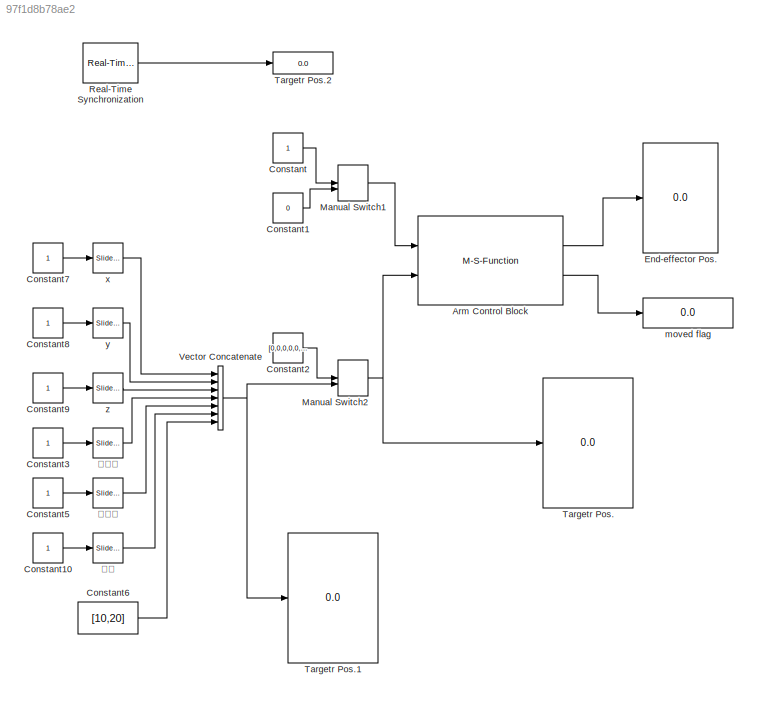
MODEL slx_97f1d8b78ae2
KIND model
CONFIG AbsTol = auto
CONFIG EnableMultiTasking = off
CONFIG FixedStep = auto
CONFIG MaxStep = auto
CONFIG MinStep = auto
CONFIG RelTol = 1e-3
CONFIG SampleTimeConstraint = Unconstrained
CONFIG Solver = VariableStepAuto
CONFIG SolverName = VariableStepAuto
CONFIG StartTime = 0.0
CONFIG StopTime = inf
BLOCK [M-S-Function] Arm Control Block
  FunctionName = armComBlock
  Parameters = comport, baud, tempPos
  Ports = [2, 2]
BLOCK [Constant] Constant
BLOCK [Constant] Constant1
  Value = 0
BLOCK [Constant] Constant10
BLOCK [Constant] Constant2
  Value = [0,0,0,0,0,0,0,0]
BLOCK [Constant] Constant3
BLOCK [Constant] Constant5
BLOCK [Constant] Constant6
  Value = [10,20]
BLOCK [Constant] Constant7
BLOCK [Constant] Constant8
BLOCK [Constant] Constant9
BLOCK [Display] End-effector Pos.
  Decimation = 1
  Ports = [1]
BLOCK [ManualSwitch] Manual Switch1
  CurrentSetting = 0
BLOCK [ManualSwitch] Manual Switch2
BLOCK [Reference] Real-Time Synchronization  REF=sldrtlib/Real-Time
Synchronization
  Commented = on
  Ports = [0, 1]
  SourceBlock = sldrtlib/Real-Time\nSynchronization
  SourceProductBaseCode = WT
  SourceProductName = Simulink Desktop Real-Time
  SourceType = Simulink Desktop Real-Time Synchronization
BLOCK [Display] Targetr Pos.
  Decimation = 1
  Ports = [1]
BLOCK [Display] Targetr Pos.1
  Decimation = 1
  Ports = [1]
BLOCK [Display] Targetr Pos.2
  Commented = on
  Decimation = 1
  Ports = [1]
BLOCK [Concatenate] Vector Concatenate
  NumInputs = 7
  Ports = [7, 1]
BLOCK [Display] moved flag
  Decimation = 1
  Ports = [1]
BLOCK [Reference] x  REF=simulink/Math
Operations/Slider
Gain
  Ports = [1, 1]
  SourceBlock = simulink/Math\nOperations/Slider\nGain
  SourceProductBaseCode = SL
  SourceProductName = Simulink
  SourceType = Slider Gain
BLOCK [Reference] y  REF=simulink/Math
Operations/Slider
Gain
  Ports = [1, 1]
  SourceBlock = simulink/Math\nOperations/Slider\nGain
  SourceProductBaseCode = SL
  SourceProductName = Simulink
  SourceType = Slider Gain
BLOCK [Reference] z  REF=simulink/Math
Operations/Slider
Gain
  Ports = [1, 1]
  SourceBlock = simulink/Math\nOperations/Slider\nGain
  SourceProductBaseCode = SL
  SourceProductName = Simulink
  SourceType = Slider Gain
BLOCK [Reference] ピッチ  REF=simulink/Math
Operations/Slider
Gain
  Ports = [1, 1]
  SourceBlock = simulink/Math\nOperations/Slider\nGain
  SourceProductBaseCode = SL
  SourceProductName = Simulink
  SourceType = Slider Gain
BLOCK [Reference] ヨー  REF=simulink/Math
Operations/Slider
Gain
  Ports = [1, 1]
  SourceBlock = simulink/Math\nOperations/Slider\nGain
  SourceProductBaseCode = SL
  SourceProductName = Simulink
  SourceType = Slider Gain
BLOCK [Reference] ロール  REF=simulink/Math
Operations/Slider
Gain
  Ports = [1, 1]
  SourceBlock = simulink/Math\nOperations/Slider\nGain
  SourceProductBaseCode = SL
  SourceProductName = Simulink
  SourceType = Slider Gain
LINE Arm Control Block:1 -> End-effector Pos.:1
LINE Arm Control Block:2 -> moved flag:1
LINE Constant10:1 -> ヨー:1
LINE Constant1:1 -> Manual Switch1:2
LINE Constant2:1 -> Manual Switch2:1
LINE Constant3:1 -> ロール:1
LINE Constant5:1 -> ピッチ:1
LINE Constant6:1 -> Vector Concatenate:7
LINE Constant7:1 -> x:1
LINE Constant8:1 -> y:1
LINE Constant9:1 -> z:1
LINE Constant:1 -> Manual Switch1:1
LINE Manual Switch1:1 -> Arm Control Block:1
NET Manual Switch2:1 -> Arm Control Block:2, Targetr Pos.:1
LINE Real-Time Synchronization:1 -> Targetr Pos.2:1
NET Vector Concatenate:1 -> Manual Switch2:2, Targetr Pos.1:1
LINE x:1 -> Vector Concatenate:1
LINE y:1 -> Vector Concatenate:2
LINE z:1 -> Vector Concatenate:3
LINE ピッチ:1 -> Vector Concatenate:5
LINE ヨー:1 -> Vector Concatenate:6
LINE ロール:1 -> Vector Concatenate:4
note: NET lines group one-source signal fan-out (src -> all destinations, sorted); 1:1 wires keep LINE
